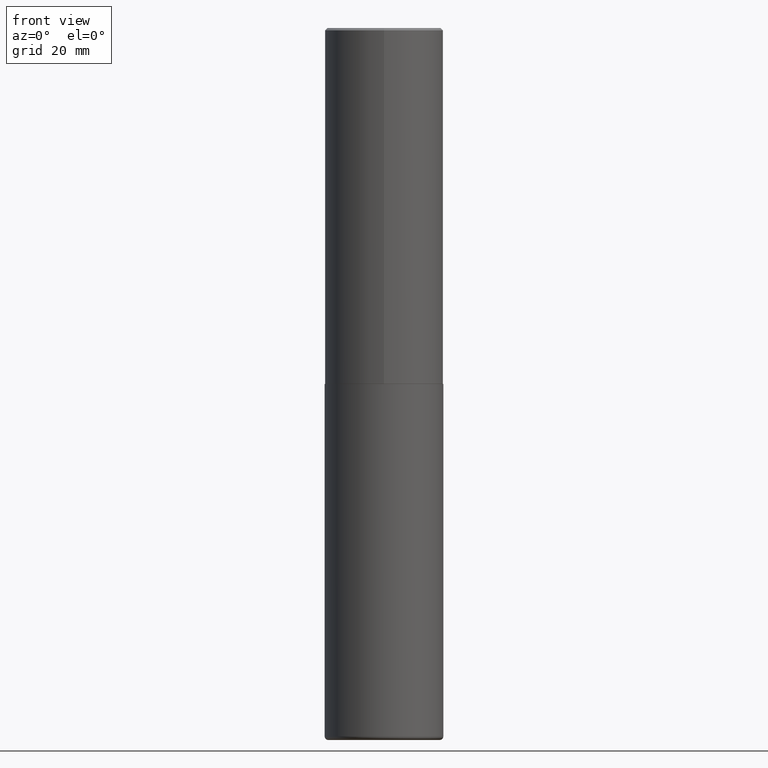
[diagram: clean part render]
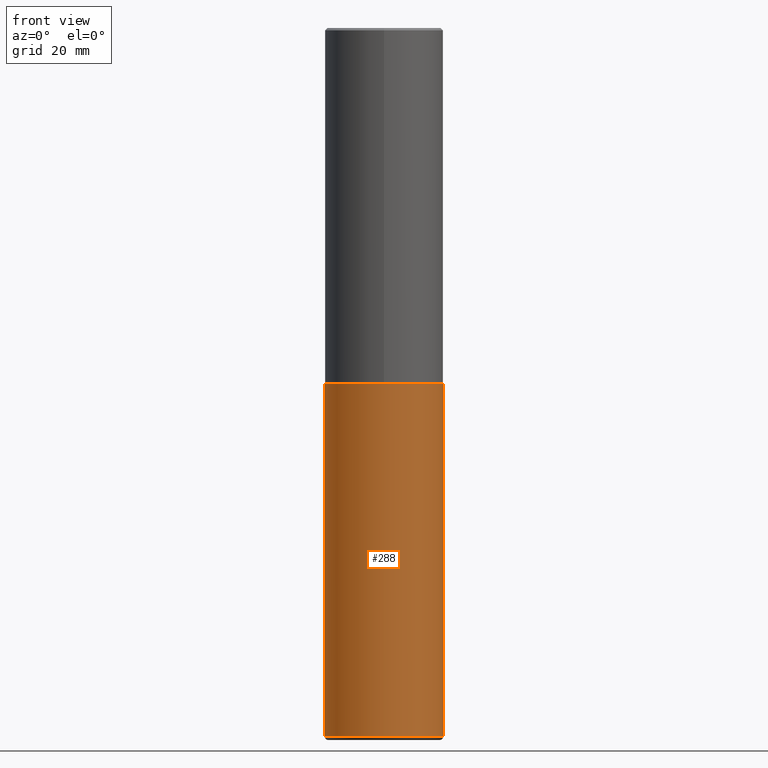
[diagram: same view with one face highlighted and labeled with its STEP entity id]
A machine part, front view. The second image highlights one B-rep face of the part: STEP entity #288.
In plain terms, the highlighted cylindrical surface (partial cylindrical patch) has radius 12.7 mm, axis along (-0, 0, 1).
Its self-contained STEP definition (entity closure, byte-faithful):
#11 = CARTESIAN_POINT ( 'NONE',  ( -0.5000000000000000000, 3.552713678800500929E-15, -2.459467545127452891E-29 ) ) ;
#20 = EDGE_CURVE ( 'NONE', #392, #32, #219, .T. ) ;
#21 = CARTESIAN_POINT ( 'NONE',  ( 0.5000000000000000000, -1.396592535537257129E-14, -3.000000000000000444 ) ) ;
#31 = CARTESIAN_POINT ( 'NONE',  ( 7.336406418555409790E-29, -1.047444401652943635E-14, -3.000000000000000444 ) ) ;
#32 = VERTEX_POINT ( 'NONE', #21 ) ;
#39 = DIRECTION ( 'NONE',  ( -2.445468806185136877E-29, 3.491481338843145188E-15, 1.000000000000000000 ) ) ;
#75 = CARTESIAN_POINT ( 'NONE',  ( -0.5000000000000000000, -1.210658012591100613E-14, -3.000000000000000444 ) ) ;
#87 = EDGE_CURVE ( 'NONE', #136, #32, #112, .T. ) ;
#102 = EDGE_LOOP ( 'NONE', ( #198, #185, #399, #386 ) ) ;
#112 = LINE ( 'NONE', #254, #122 ) ;
#115 = DIRECTION ( 'NONE',  ( 1.000000000000000000, -6.982962677686266711E-15, 0.000000000000000000 ) ) ;
#122 = VECTOR ( 'NONE', #381, 39.37007874015748143 ) ;
#128 = CARTESIAN_POINT ( 'NONE',  ( 1.459944877292526494E-28, -2.084414359289357934E-14, -5.969999999999999751 ) ) ;
#135 = CARTESIAN_POINT ( 'NONE',  ( 0.5000000000000003331, -2.433562493173670954E-14, -5.969999999999999751 ) ) ;
#136 = VERTEX_POINT ( 'NONE', #135 ) ;
#143 = AXIS2_PLACEMENT_3D ( 'NONE', #412, #352, #321 ) ;
#151 = CARTESIAN_POINT ( 'NONE',  ( -0.5000000000000003331, -1.729142991409307210E-14, -5.969999999999999751 ) ) ;
#184 = CYLINDRICAL_SURFACE ( 'NONE', #143, 0.5000000000000000000 ) ;
#185 = ORIENTED_EDGE ( 'NONE', *, *, #312, .T. ) ;
#198 = ORIENTED_EDGE ( 'NONE', *, *, #413, .F. ) ;
#201 = DIRECTION ( 'NONE',  ( -2.445468806185136597E-29, 3.491481338843145583E-15, 1.000000000000000000 ) ) ;
#219 = CIRCLE ( 'NONE', #345, 0.5000000000000000000 ) ;
#254 = CARTESIAN_POINT ( 'NONE',  ( 0.5000000000000000000, -3.491481338843133355E-15, 2.438088387897967896E-29 ) ) ;
#267 = VECTOR ( 'NONE', #39, 39.37007874015748143 ) ;
#287 = CIRCLE ( 'NONE', #319, 0.4999999999999999445 ) ;
#288 = ADVANCED_FACE ( 'NONE', ( #375 ), #184, .T. ) ;
#299 = DIRECTION ( 'NONE',  ( -2.445468806185136597E-29, 3.491481338843145583E-15, 1.000000000000000000 ) ) ;
#305 = DIRECTION ( 'NONE',  ( 1.000000000000000000, -6.982962677686263555E-15, 0.000000000000000000 ) ) ;
#309 = VERTEX_POINT ( 'NONE', #151 ) ;
#312 = EDGE_CURVE ( 'NONE', #309, #136, #287, .T. ) ;
#319 = AXIS2_PLACEMENT_3D ( 'NONE', #128, #201, #305 ) ;
#321 = DIRECTION ( 'NONE',  ( 1.000000000000000000, -6.982962677686266711E-15, 4.876176775795935793E-29 ) ) ;
#345 = AXIS2_PLACEMENT_3D ( 'NONE', #31, #299, #115 ) ;
#352 = DIRECTION ( 'NONE',  ( -2.445468806185136597E-29, 3.491481338843145583E-15, 1.000000000000000000 ) ) ;
#374 = LINE ( 'NONE', #11, #267 ) ;
#375 = FACE_OUTER_BOUND ( 'NONE', #102, .T. ) ;
#381 = DIRECTION ( 'NONE',  ( -2.445468806185136877E-29, 3.491481338843145188E-15, 1.000000000000000000 ) ) ;
#386 = ORIENTED_EDGE ( 'NONE', *, *, #20, .F. ) ;
#392 = VERTEX_POINT ( 'NONE', #75 ) ;
#399 = ORIENTED_EDGE ( 'NONE', *, *, #87, .T. ) ;
#412 = CARTESIAN_POINT ( 'NONE',  ( 0.000000000000000000, 0.000000000000000000, 0.000000000000000000 ) ) ;
#413 = EDGE_CURVE ( 'NONE', #309, #392, #374, .T. ) ;